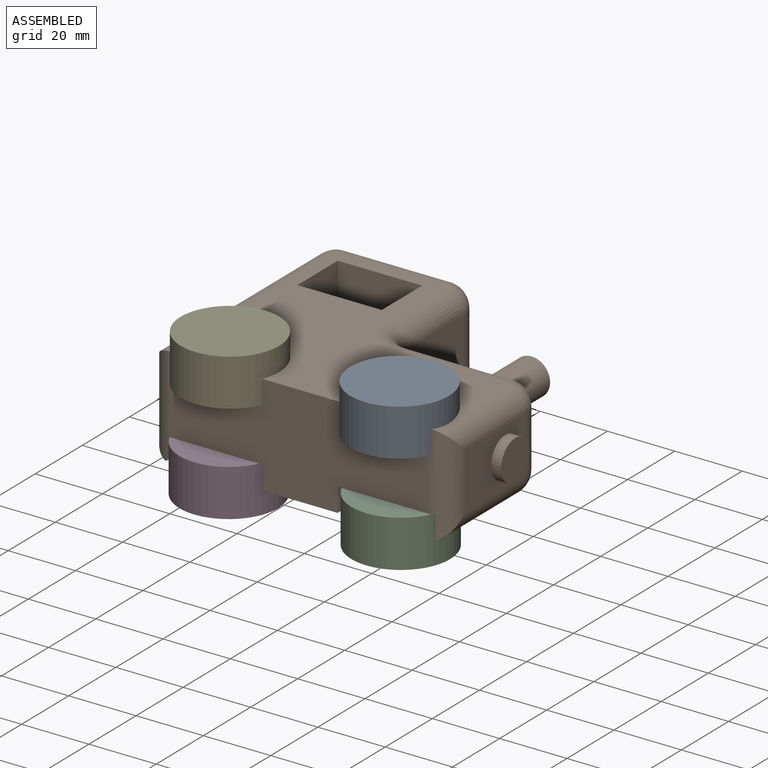
[diagram: assembled view]
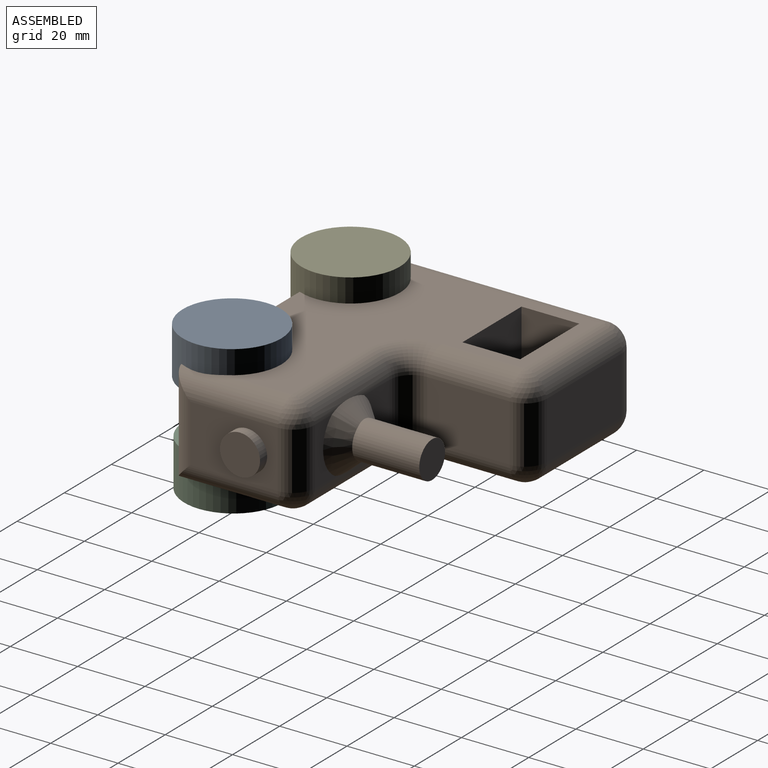
[diagram: assembled view, second angle]
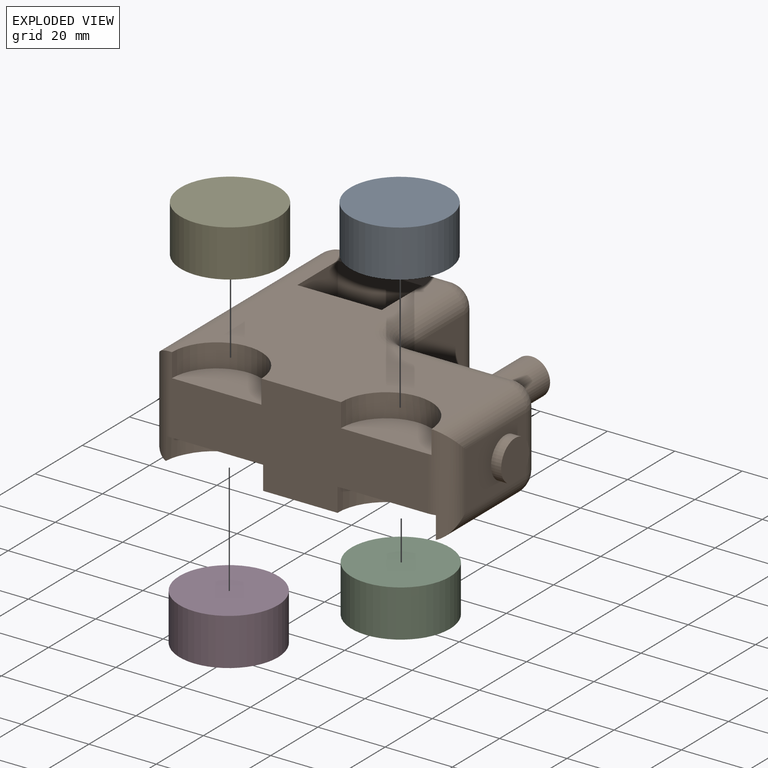
[diagram: exploded view]
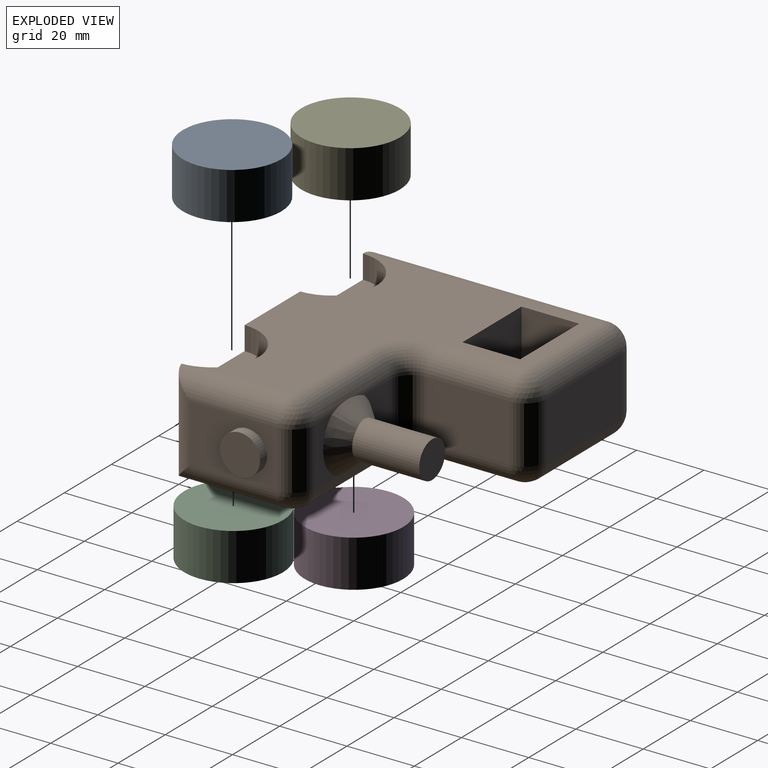
[diagram: exploded view, second angle]
ASSEMBLY  parts=5 mates=4
PART A: 3 faces, bbox 29.3x29.3x14 mm
  f0: cylinder r=14.64mm len=29.29mm, axis (0,0,-1), area 1288.2mm2, adj f1,f2
  f1: plane 29.29x29.29mm, normal (0,0,1), area 673.8mm2, adj f0
  f2: plane 29.29x29.29mm, normal (0,0,-1), area 673.8mm2, adj f0
PART B: 53 faces, bbox 92.5x76.6x30 mm
  f0: plane 17x8.54mm, normal (0,1,0), area 81.4mm2, adj f28,f36,f40,f50
  f1: plane 76.49x70.1mm, normal (0,0,-1), area 2643mm2, adj f4,f14,f16,f17,f22,f27,f28,f29
  f2: plane 17x12.21mm, normal (0,1,0), area 143.8mm2, adj f28,f35,f40,f51
  f3: plane 63.6x17mm, normal (-1,0,0), area 1081.2mm2, adj f17,f18,f20,f21
  f4: plane 76.49x30mm, normal (0,-1,0), area 1546.9mm2, adj f1,f6,f9,f10,f11,f12,f13,f14
  f5: plane 26x17mm, normal (1,0,0), area 330.5mm2, adj f29,f33,f36,f37,f45
  f6: plane 76.49x70.1mm, normal (0,0,1), area 2729.6mm2, adj f4,f10,f12,f20,f25,f34,f37,f38
  f7: plane 24.6x17mm, normal (1,0,0), area 418.2mm2, adj f26,f27,f34,f35
  f8: plane 31.75x17mm, normal (0,1,0), area 539.7mm2, adj f21,f22,f25,f26
  f9: plane 26.86x13.43mm, normal (0,0,1), area 283.3mm2, adj f4,f10,f33
  f10: cylinder r=13.43mm len=26.86mm, axis (0,0,1), area 294.6mm2, adj f4,f6,f9,f33,f37
  f11: plane 26.57x13.28mm, normal (0,0,1), area 277.2mm2, adj f4,f12
  f12: cylinder r=13.28mm len=26.57mm, axis (0,0,1), area 292.1mm2, adj f4,f6,f11
  f13: plane 29.01x14.51mm, normal (0,0,-1), area 330.3mm2, adj f4,f14,f33
  f14: cylinder r=14.51mm len=29.01mm, axis (0,0,-1), area 315.2mm2, adj f1,f4,f13,f29,f33
  f15: plane 29.01x14.51mm, normal (0,0,-1), area 330.4mm2, adj f4,f16,f18
  f16: cylinder r=14.51mm len=29.01mm, axis (0,0,-1), area 317.2mm2, adj f1,f4,f15,f17,f18
  f17: cylinder r=6.5mm len=69.92mm, axis (0,-1,0), area 681.7mm2, adj f1,f3,f16,f18,f19
  f18: cylinder r=6.5mm len=29.82mm, axis (0,0,-1), area 247.5mm2, adj f3,f4,f15,f16,f17,f20
  f19: sphere r=6.5mm, area 90.5mm2, adj f17,f21,f22
  f20: cylinder r=6.5mm len=70.1mm, axis (0,1,0), area 682.6mm2, adj f3,f6,f18,f23
  f21: cylinder r=6.5mm len=17mm, axis (0,0,-1), area 173.6mm2, adj f3,f8,f19,f23
  f22: cylinder r=6.5mm len=31.75mm, axis (-1,0,0), area 324.1mm2, adj f1,f8,f19,f24
  f23: sphere r=6.5mm, area 90.5mm2, adj f20,f21,f25
  f24: sphere r=6.5mm, area 42.2mm2, adj f22,f26,f27
  f25: cylinder r=6.5mm len=31.75mm, axis (1,0,0), area 324.1mm2, adj f6,f8,f23,f30
  f26: cylinder r=6.5mm len=17mm, axis (0,0,-1), area 173.6mm2, adj f7,f8,f24,f30
  f27: cylinder r=6.5mm len=24.6mm, axis (0,1,0), area 251.2mm2, adj f1,f7,f24,f31
  f28: cylinder r=6.5mm len=31.75mm, axis (-1,0,0), area 317.7mm2, adj f0,f1,f2,f31,f32,f52
  f29: cylinder r=6.5mm len=32.16mm, axis (0,1,0), area 295.8mm2, adj f1,f5,f14,f32,f33
  f30: sphere r=6.5mm, area 90.5mm2, adj f25,f26,f34
  f31: torus R=13mm, axis (0,0,1), area 142.1mm2, adj f1,f27,f28,f35
  f32: sphere r=6.5mm, area 42.2mm2, adj f28,f29,f36
  f33: cylinder r=6.5mm len=29.58mm, axis (0,0,1), area 236.4mm2, adj f4,f5,f9,f10,f13,f14,f29,f37
  f34: cylinder r=6.5mm len=24.6mm, axis (0,-1,0), area 251.2mm2, adj f6,f7,f30,f38
  f35: cylinder r=6.5mm len=17mm, axis (0,0,-1), area 173.6mm2, adj f2,f7,f31,f38
  f36: cylinder r=6.5mm len=17mm, axis (0,0,-1), area 173.6mm2, adj f0,f5,f32,f39
  f37: cylinder r=6.5mm len=32.43mm, axis (0,-1,0), area 299mm2, adj f5,f6,f10,f33,f39
  f38: torus R=13mm, axis (0,0,1), area 142.1mm2, adj f6,f34,f35,f40
  f39: sphere r=6.5mm, area 42.2mm2, adj f36,f37,f40
  f40: cylinder r=6.5mm len=31.75mm, axis (1,0,0), area 310.4mm2, adj f0,f2,f6,f38,f39,f49
  f41: plane 30x25.05mm, normal (0,-1,0), area 751.6mm2, adj f1,f6,f42,f44
  f42: plane 30x17.14mm, normal (-1,0,0), area 514.2mm2, adj f1,f6,f41,f43
  f43: plane 30x25.05mm, normal (0,1,0), area 751.6mm2, adj f1,f6,f42,f44
  f44: plane 30x17.14mm, normal (1,0,0), area 514.2mm2, adj f1,f6,f41,f43
  f45: cylinder r=5.96mm len=11.92mm, axis (-1,0,0), area 112.3mm2, adj f5,f46
  f46: plane 11.92x11.92mm, normal (1,0,0), area 111.6mm2, adj f45
  f47: cylinder r=5.48mm len=19.92mm, axis (0,-1,0), area 685.9mm2, adj f48,f49,f50,f51,f52
  f48: plane 10.96x10.96mm, normal (0,1,0), area 94.3mm2, adj f47
  f49: bspline ~13.82x5.29mm, area 73mm2, adj f40,f47,f50,f51
  f50: cone r=5.48mm half-angle=45deg, axis (0,-1,0), area 108.3mm2, adj f0,f47,f49,f52
  f51: cone r=5.48mm half-angle=45deg, axis (0,-1,0), area 108.3mm2, adj f2,f47,f49,f52
  f52: bspline ~11x5.2mm, area 58.8mm2, adj f28,f47,f50,f51
PART C: same geometry as A
PART D: same geometry as A
PART E: same geometry as A
PLACE A t=(-12.1,-36.58,28.2)mm
PLACE B t=(-37.91,-22.78,5.2)mm
PLACE C t=(-12.08,-36.12,-1.8)mm
PLACE D t=(-63.16,-36.12,-1.8)mm
PLACE E t=(-62.44,-36.65,28.2)mm
MATE fastened B.f13 <-> C.f0  axis (0,0,-1) through (-12.08,-36.12,12.2)mm
MATE fastened A.f0 <-> B.f9  axis (0,0,-1) through (-12.1,-36.58,28.2)mm
MATE fastened D.f0 <-> B.f15  axis (0,0,1) through (-63.16,-36.12,12.2)mm
MATE fastened E.f0 <-> B.f11  axis (0,0,-1) through (-62.44,-36.65,28.2)mm
